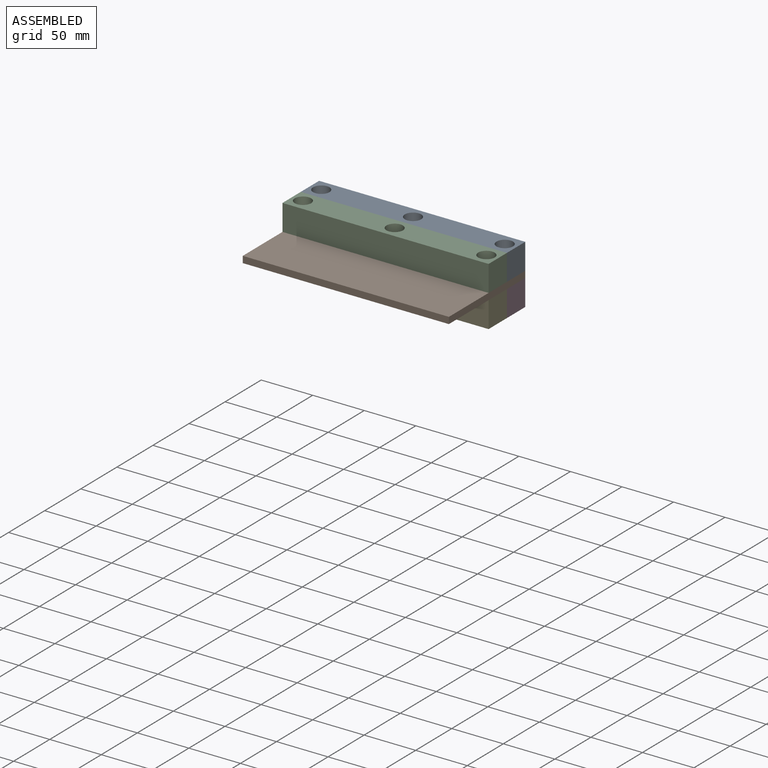
[diagram: assembled view]
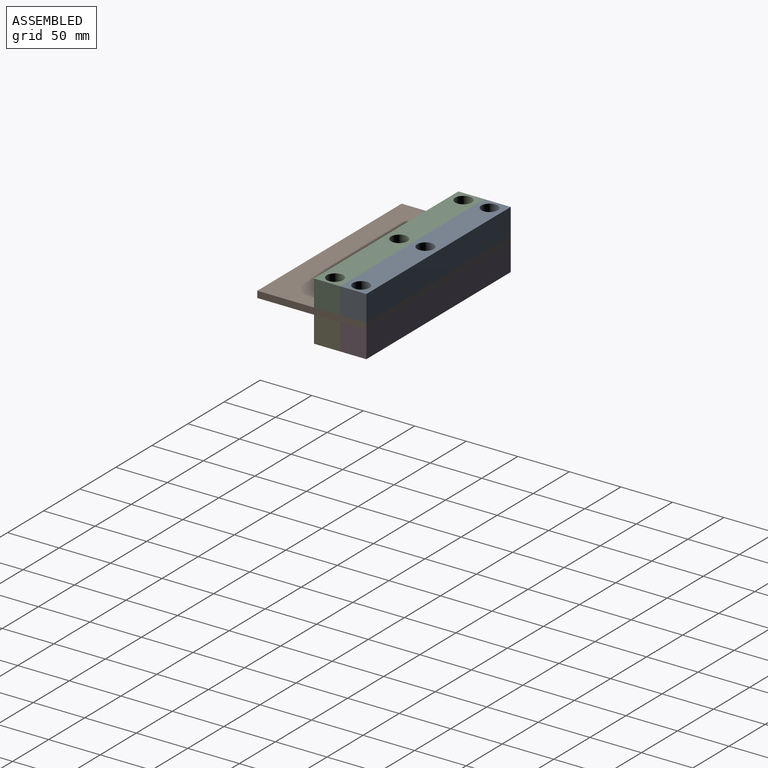
[diagram: assembled view, second angle]
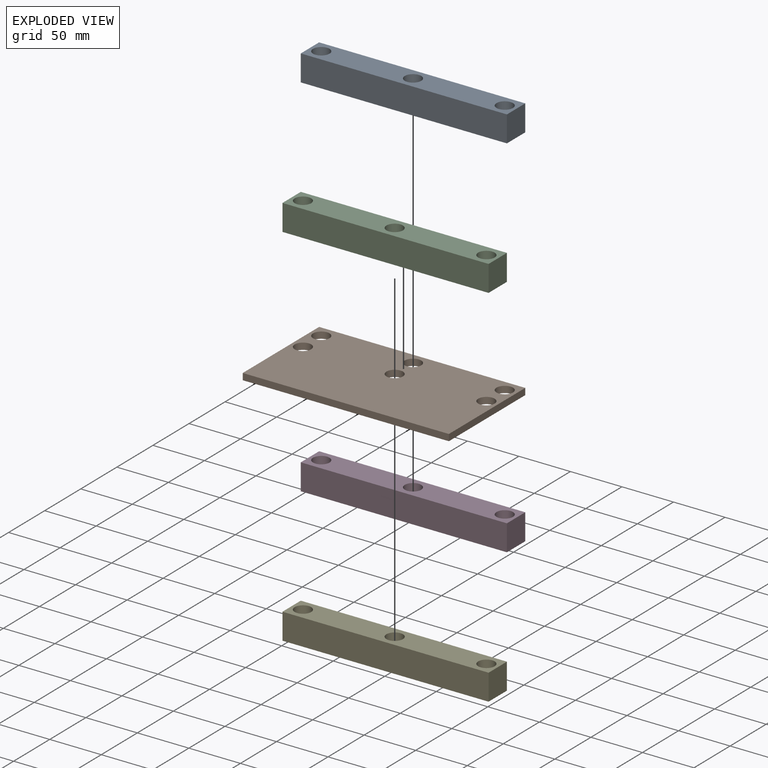
[diagram: exploded view]
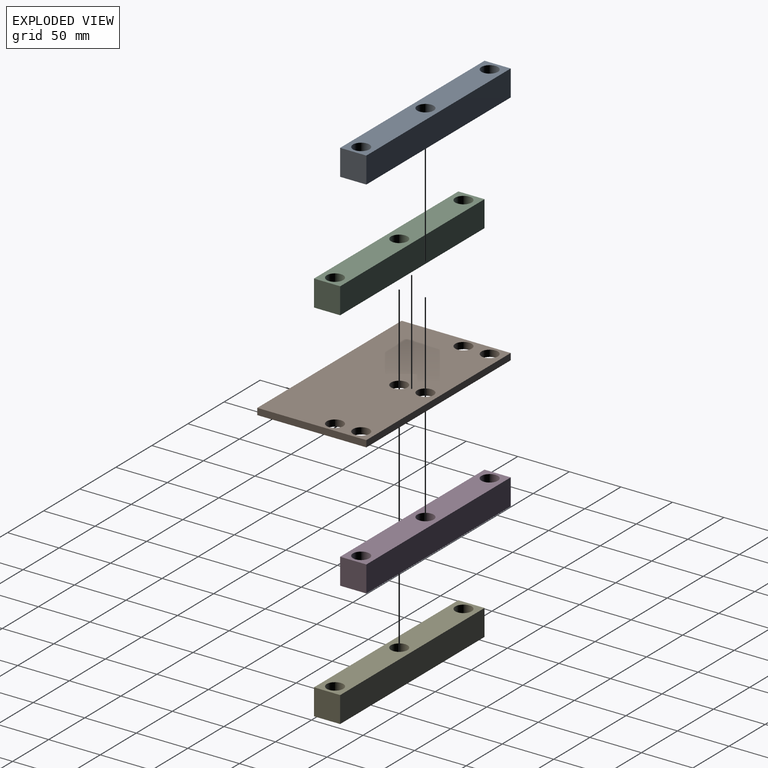
[diagram: exploded view, second angle]
ASSEMBLY  parts=5 mates=5
PART A: 9 faces, bbox 200x25.4x25.4 mm
  f0: plane 200x25.4mm, normal (0,1,0), area 5080mm2, adj f1,f3,f4,f5
  f1: plane 25.4x25.4mm, normal (-1,0,0), area 645.2mm2, adj f0,f2,f4,f5
  f2: plane 200x25.4mm, normal (0,-1,0), area 5080mm2, adj f1,f3,f4,f5
  f3: plane 25.4x25.4mm, normal (1,0,0), area 645.2mm2, adj f0,f2,f4,f5
  f4: plane 200x25.4mm, normal (0,0,1), area 4476.8mm2, adj f0,f1,f2,f3,f6,f7,f8
  f5: plane 200x25.4mm, normal (0,0,-1), area 4476.8mm2, adj f0,f1,f2,f3,f6,f7,f8
  f6: cylinder r=8mm len=25.4mm, axis (0,0,1), area 1276.7mm2, adj f4,f5
  f7: cylinder r=8mm len=25.4mm, axis (0,0,1), area 1276.7mm2, adj f4,f5
  f8: cylinder r=8mm len=25.4mm, axis (0,0,1), area 1276.7mm2, adj f4,f5
PART B: 12 faces, bbox 200x105.8x6.4 mm
  f0: plane 200x6.35mm, normal (0,1,0), area 1270mm2, adj f1,f3,f4,f5
  f1: plane 105.8x6.35mm, normal (-1,0,0), area 671.8mm2, adj f0,f2,f4,f5
  f2: plane 200x6.35mm, normal (0,-1,0), area 1270mm2, adj f1,f3,f4,f5
  f3: plane 105.8x6.35mm, normal (1,0,0), area 671.8mm2, adj f0,f2,f4,f5
  f4: plane 200x105.8mm, normal (0,0,1), area 19953.6mm2, adj f0,f1,f2,f3,f6,f7,f8,f9
  f5: plane 200x105.8mm, normal (0,0,-1), area 19953.6mm2, adj f0,f1,f2,f3,f6,f7,f8,f9
  f6: cylinder r=8mm len=16mm, axis (0,0,1), area 319.2mm2, adj f4,f5
  f7: cylinder r=8mm len=16mm, axis (0,0,1), area 319.2mm2, adj f4,f5
  f8: cylinder r=8mm len=16mm, axis (0,0,1), area 319.2mm2, adj f4,f5
  f9: cylinder r=8mm len=16mm, axis (0,0,1), area 319.2mm2, adj f4,f5
  f10: cylinder r=8mm len=16mm, axis (0,0,1), area 319.2mm2, adj f4,f5
  f11: cylinder r=8mm len=16mm, axis (0,0,1), area 319.2mm2, adj f4,f5
PART C: same geometry as A
PART D: same geometry as A
PART E: same geometry as A
PLACE A t=(146.09,52.78,3.54)mm
PLACE B t=(-100.64,-53.02,-2.81)mm
PLACE C t=(146.09,27.38,3.54)mm
PLACE D t=(146.09,52.78,-28.21)mm
PLACE E t=(146.09,27.38,-28.21)mm
MATE parallel C.f7 <-> B.f10  axis (0,0,-1) through (-0.64,14.68,3.54)mm
MATE parallel E.f7 <-> B.f10  axis (0,0,1) through (-0.64,14.68,-2.81)mm
MATE parallel A.f7 <-> B.f7  axis (0,0,-1) through (-0.64,40.08,3.54)mm
MATE parallel D.f4 <-> B.f7  axis (0,0,1) through (-0.64,27.38,-2.81)mm
MATE cylindrical D.f8 <-> B.f6  axis (0,0,1) through (-89.64,40.08,-2.81)mm
